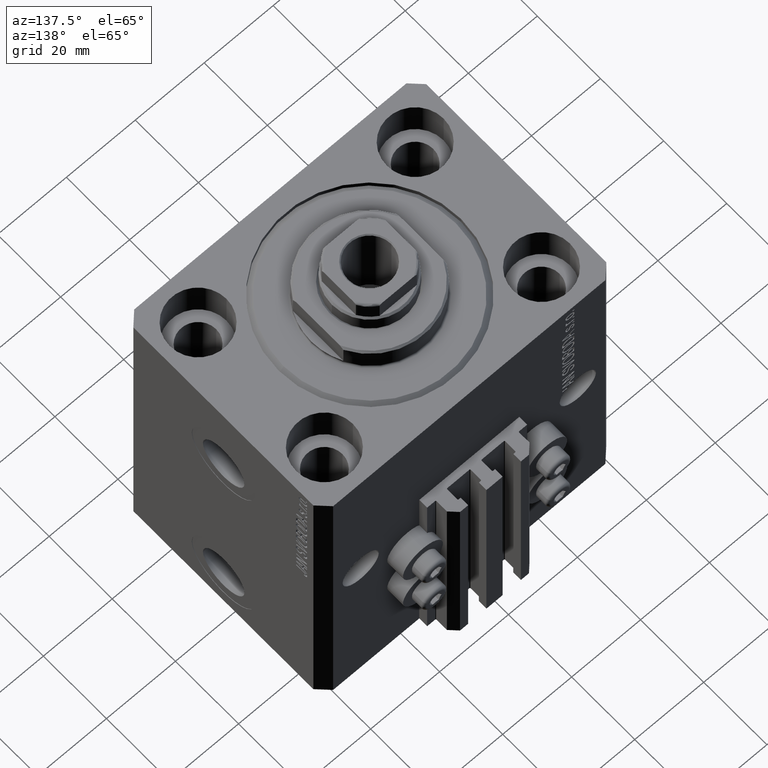
[diagram: clean part render]
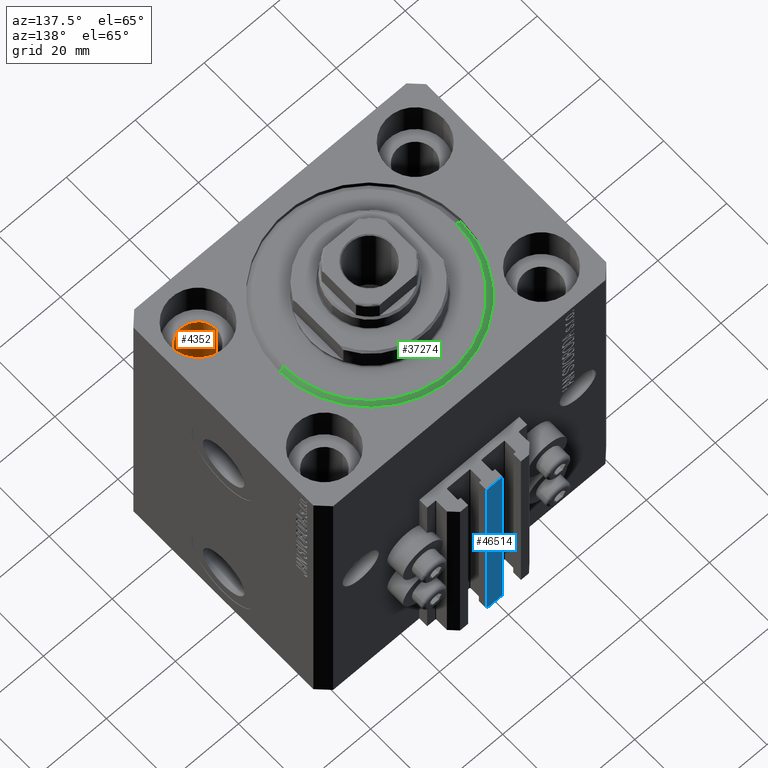
[diagram: same view with three faces highlighted in distinct colors, each labeled with its STEP entity id]
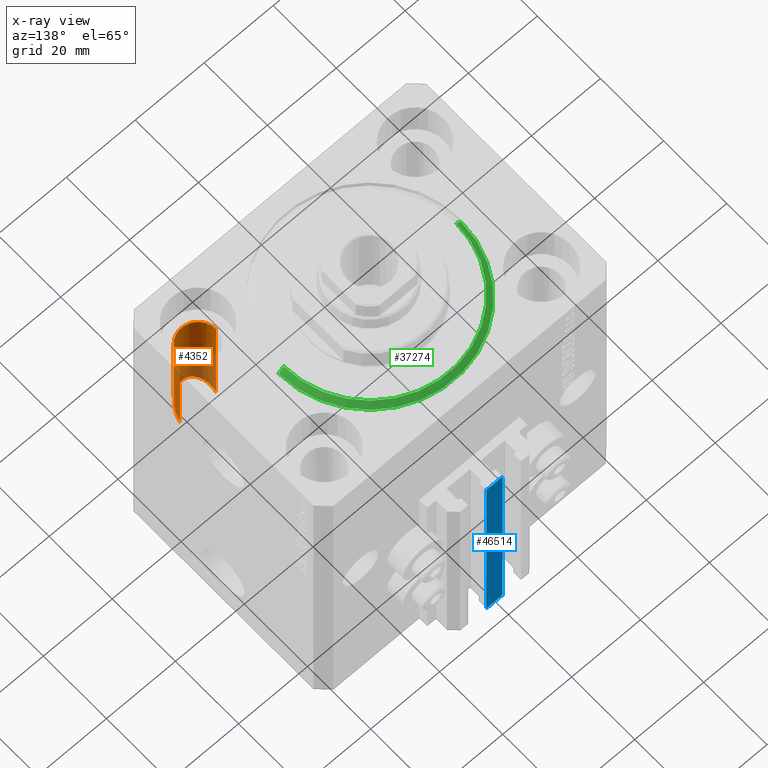
[diagram: x-ray of the same camera — body ghosted, the three highlighted faces saturated]
A machine part, auxiliary view with three faces highlighted in distinct colors.
The next image is the same camera in x-ray (body ghosted, the three faces saturated) — at least one of them is partly hidden behind the body in this view.
Their STEP definitions:

[orange] entity #4352 — the highlighted cylindrical surface (edge-blend (fillet) strip) has radius 5.25 mm, axis along (0, 0, 1).
#697 = VERTEX_POINT ( 'NONE', #34211 ) ;
#2749 = ORIENTED_EDGE ( 'NONE', *, *, #5112, .T. ) ;
#4341 = ORIENTED_EDGE ( 'NONE', *, *, #25120, .T. ) ;
#4352 = ADVANCED_FACE ( 'NONE', ( #44802 ), #14401, .F. ) ;
#4527 = CARTESIAN_POINT ( 'NONE',  ( 36.75000000000000000, -30.49999999999999645, -32.50000000000000711 ) ) ;
#5112 = EDGE_CURVE ( 'NONE', #13179, #29670, #9159, .T. ) ;
#5585 = EDGE_CURVE ( 'NONE', #697, #29670, #19811, .T. ) ;
#9159 = CIRCLE ( 'NONE', #47215, 5.249999999999997335 ) ;
#10966 = CARTESIAN_POINT ( 'NONE',  ( 36.75000000000000000, -20.00000000000000000, -11.00000000000000000 ) ) ;
#11570 = CARTESIAN_POINT ( 'NONE',  ( 26.25000000000001066, -20.00000000000000355, -43.00000000000000000 ) ) ;
#12799 = DIRECTION ( 'NONE',  ( 0.000000000000000000, 0.000000000000000000, 1.000000000000000000 ) ) ;
#13179 = VERTEX_POINT ( 'NONE', #17321 ) ;
#13188 = VECTOR ( 'NONE', #29678, 1000.000000000000000 ) ;
#14401 = CYLINDRICAL_SURFACE ( 'NONE', #38635, 5.249999999999997335 ) ;
#14590 = LINE ( 'NONE', #15071, #13188 ) ;
#15071 = CARTESIAN_POINT ( 'NONE',  ( 26.25000000000000355, -20.00000000000000000, -93.00000000000000000 ) ) ;
#15463 = CARTESIAN_POINT ( 'NONE',  ( 36.75000000000000711, -20.00000000000000355, -43.00000000000000000 ) ) ;
#17321 = CARTESIAN_POINT ( 'NONE',  ( 26.25000000000000355, -20.00000000000000000, -11.00000000000000000 ) ) ;
#19811 = LINE ( 'NONE', #39440, #39470 ) ;
#20593 = DIRECTION ( 'NONE',  ( 1.000000000000000000, 0.000000000000000000, 0.000000000000000000 ) ) ;
#20957 = DIRECTION ( 'NONE',  ( -0.000000000000000000, -0.000000000000000000, 1.000000000000000000 ) ) ;
#21267 = EDGE_LOOP ( 'NONE', ( #4341, #22322, #2749, #27769 ) ) ;
#21475 = DIRECTION ( 'NONE',  ( 1.000000000000000000, 0.000000000000000000, 0.000000000000000000 ) ) ;
#22322 = ORIENTED_EDGE ( 'NONE', *, *, #33324, .T. ) ;
#24970 = VERTEX_POINT ( 'NONE', #38627 ) ;
#25120 = EDGE_CURVE ( 'NONE', #697, #24970, #39880, .T. ) ;
#25137 = CARTESIAN_POINT ( 'NONE',  ( 31.50000000000000000, -20.00000000000000000, -93.00000000000000000 ) ) ;
#27769 = ORIENTED_EDGE ( 'NONE', *, *, #5585, .F. ) ;
#29490 = DIRECTION ( 'NONE',  ( -0.000000000000000000, -0.000000000000000000, 1.000000000000000000 ) ) ;
#29670 = VERTEX_POINT ( 'NONE', #10966 ) ;
#29678 = DIRECTION ( 'NONE',  ( -0.000000000000000000, -0.000000000000000000, 1.000000000000000000 ) ) ;
#33324 = EDGE_CURVE ( 'NONE', #24970, #13179, #14590, .T. ) ;
#34211 = CARTESIAN_POINT ( 'NONE',  ( 36.75000000000000711, -20.00000000000000355, -43.00000000000000000 ) ) ;
#37608 = CARTESIAN_POINT ( 'NONE',  ( 26.25000000000001776, -30.49999999999999645, -32.50000000000000711 ) ) ;
#38627 = CARTESIAN_POINT ( 'NONE',  ( 26.25000000000001066, -20.00000000000000355, -43.00000000000000000 ) ) ;
#38635 = AXIS2_PLACEMENT_3D ( 'NONE', #25137, #29490, #21475 ) ;
#39440 = CARTESIAN_POINT ( 'NONE',  ( 36.75000000000000000, -20.00000000000000000, -93.00000000000000000 ) ) ;
#39470 = VECTOR ( 'NONE', #20957, 1000.000000000000000 ) ;
#39880 =( BOUNDED_CURVE ( )  B_SPLINE_CURVE ( 3, ( #15463, #4527, #37608, #11570 ),
 .UNSPECIFIED., .F., .F. ) 
 B_SPLINE_CURVE_WITH_KNOTS ( ( 4, 4 ),
 ( 4.712388980384689674, 7.853981633974482790 ),
 .UNSPECIFIED. ) 
 CURVE ( )  GEOMETRIC_REPRESENTATION_ITEM ( )  RATIONAL_B_SPLINE_CURVE ( ( 1.000000000000000000, 0.3333333333333333703, 0.3333333333333333703, 1.000000000000000000 ) ) 
 REPRESENTATION_ITEM ( '' )  );
#44802 = FACE_OUTER_BOUND ( 'NONE', #21267, .T. ) ;
#46138 = CARTESIAN_POINT ( 'NONE',  ( 31.50000000000000000, -20.00000000000000000, -11.00000000000000000 ) ) ;
#47215 = AXIS2_PLACEMENT_3D ( 'NONE', #46138, #12799, #20593 ) ;

[blue] entity #46514 — the highlighted planar face has unit normal (0, -1, 0).
#368 = LINE ( 'NONE', #33949, #6888 ) ;
#981 = DIRECTION ( 'NONE',  ( 0.000000000000000000, -0.000000000000000000, -1.000000000000000000 ) ) ;
#1730 = ORIENTED_EDGE ( 'NONE', *, *, #29987, .T. ) ;
#1805 = AXIS2_PLACEMENT_3D ( 'NONE', #27509, #41857, #981 ) ;
#2627 = DIRECTION ( 'NONE',  ( 1.000000000000000000, 0.000000000000000000, 0.000000000000000000 ) ) ;
#3656 = EDGE_LOOP ( 'NONE', ( #1730, #18102, #12711, #33230 ) ) ;
#6888 = VECTOR ( 'NONE', #44894, 1000.000000000000000 ) ;
#7462 = EDGE_CURVE ( 'NONE', #35905, #8668, #368, .T. ) ;
#8668 = VERTEX_POINT ( 'NONE', #29296 ) ;
#12711 = ORIENTED_EDGE ( 'NONE', *, *, #42991, .F. ) ;
#13307 = DIRECTION ( 'NONE',  ( 1.000000000000000000, 0.000000000000000000, 0.000000000000000000 ) ) ;
#13345 = DIRECTION ( 'NONE',  ( 0.000000000000000000, 0.000000000000000000, 1.000000000000000000 ) ) ;
#16140 = VERTEX_POINT ( 'NONE', #39807 ) ;
#17730 = VECTOR ( 'NONE', #2627, 1000.000000000000000 ) ;
#17935 = LINE ( 'NONE', #36442, #29711 ) ;
#18102 = ORIENTED_EDGE ( 'NONE', *, *, #7462, .F. ) ;
#20312 = VECTOR ( 'NONE', #13307, 1000.000000000000000 ) ;
#24267 = CARTESIAN_POINT ( 'NONE',  ( -2.350000000000003642, 39.50000000000000711, -93.00000000000000000 ) ) ;
#24506 = LINE ( 'NONE', #24267, #20312 ) ;
#26991 = CARTESIAN_POINT ( 'NONE',  ( -2.350000000000003642, 39.50000000000000711, -33.00000000000000000 ) ) ;
#27018 = FACE_OUTER_BOUND ( 'NONE', #3656, .T. ) ;
#27509 = CARTESIAN_POINT ( 'NONE',  ( -2.350000000000003642, 39.50000000000000711, -93.00000000000000000 ) ) ;
#28756 = VERTEX_POINT ( 'NONE', #26991 ) ;
#29296 = CARTESIAN_POINT ( 'NONE',  ( 2.349999999999999645, 39.50000000000000711, -33.00000000000000000 ) ) ;
#29711 = VECTOR ( 'NONE', #13345, 1000.000000000000000 ) ;
#29987 = EDGE_CURVE ( 'NONE', #28756, #8668, #43267, .T. ) ;
#33230 = ORIENTED_EDGE ( 'NONE', *, *, #45193, .T. ) ;
#33949 = CARTESIAN_POINT ( 'NONE',  ( 2.349999999999999645, 39.50000000000000711, -93.00000000000000000 ) ) ;
#35905 = VERTEX_POINT ( 'NONE', #46778 ) ;
#36442 = CARTESIAN_POINT ( 'NONE',  ( -2.350000000000003642, 39.50000000000000711, -93.00000000000000000 ) ) ;
#39807 = CARTESIAN_POINT ( 'NONE',  ( -2.350000000000003642, 39.50000000000000711, -93.00000000000000000 ) ) ;
#41857 = DIRECTION ( 'NONE',  ( 0.000000000000000000, -1.000000000000000000, 0.000000000000000000 ) ) ;
#42347 = PLANE ( 'NONE',  #1805 ) ;
#42991 = EDGE_CURVE ( 'NONE', #16140, #35905, #24506, .T. ) ;
#43267 = LINE ( 'NONE', #47605, #17730 ) ;
#44894 = DIRECTION ( 'NONE',  ( 0.000000000000000000, 0.000000000000000000, 1.000000000000000000 ) ) ;
#45193 = EDGE_CURVE ( 'NONE', #16140, #28756, #17935, .T. ) ;
#46514 = ADVANCED_FACE ( 'NONE', ( #27018 ), #42347, .F. ) ;
#46778 = CARTESIAN_POINT ( 'NONE',  ( 2.349999999999999645, 39.50000000000000711, -93.00000000000000000 ) ) ;
#47605 = CARTESIAN_POINT ( 'NONE',  ( -2.350000000000003642, 39.50000000000000711, -33.00000000000000000 ) ) ;

[green] entity #37274 — the highlighted conical surface has half-angle 45 deg.
#2 = CIRCLE ( 'NONE', #3152, 26.50000000000000355 ) ;
#267 = DIRECTION ( 'NONE',  ( -0.7071067811865491270, 8.659560562354952580E-17, 0.7071067811865459074 ) ) ;
#717 = DIRECTION ( 'NONE',  ( 0.7071067811865491270, 0.000000000000000000, 0.7071067811865459074 ) ) ;
#3000 = CARTESIAN_POINT ( 'NONE',  ( -24.99999999999995026, 3.153465507804431248E-15, 0.000000000000000000 ) ) ;
#3152 = AXIS2_PLACEMENT_3D ( 'NONE', #40067, #14981, #44428 ) ;
#4267 = ORIENTED_EDGE ( 'NONE', *, *, #35443, .F. ) ;
#5918 = VECTOR ( 'NONE', #717, 1000.000000000000000 ) ;
#6785 = VERTEX_POINT ( 'NONE', #3000 ) ;
#8635 = VECTOR ( 'NONE', #267, 1000.000000000000000 ) ;
#8739 = LINE ( 'NONE', #27482, #5918 ) ;
#9577 = DIRECTION ( 'NONE',  ( 1.000000000000000000, 0.000000000000000000, 0.000000000000000000 ) ) ;
#10499 = CARTESIAN_POINT ( 'NONE',  ( 26.50000000000000355, 3.245314017740485765E-15, 1.500000000000046407 ) ) ;
#13224 = DIRECTION ( 'NONE',  ( -0.000000000000000000, -0.000000000000000000, -1.000000000000000000 ) ) ;
#14467 = DIRECTION ( 'NONE',  ( -0.000000000000000000, -0.000000000000000000, 1.000000000000000000 ) ) ;
#14981 = DIRECTION ( 'NONE',  ( -0.000000000000000000, -0.000000000000000000, 1.000000000000000000 ) ) ;
#16773 = AXIS2_PLACEMENT_3D ( 'NONE', #46557, #13224, #9577 ) ;
#18754 = VERTEX_POINT ( 'NONE', #33030 ) ;
#18758 = LINE ( 'NONE', #33596, #8635 ) ;
#21145 = EDGE_CURVE ( 'NONE', #6785, #18754, #37748, .T. ) ;
#22287 = EDGE_CURVE ( 'NONE', #18754, #42610, #8739, .T. ) ;
#25745 = CONICAL_SURFACE ( 'NONE', #31993, 26.50000000000000355, 0.7853981633974506105 ) ;
#27482 = CARTESIAN_POINT ( 'NONE',  ( 26.50000000000000355, 0.000000000000000000, 1.500000000000046407 ) ) ;
#28043 = VERTEX_POINT ( 'NONE', #42978 ) ;
#31993 = AXIS2_PLACEMENT_3D ( 'NONE', #47796, #14467, #44146 ) ;
#32961 = FACE_OUTER_BOUND ( 'NONE', #43590, .T. ) ;
#33030 = CARTESIAN_POINT ( 'NONE',  ( 24.99999999999995026, 0.000000000000000000, 0.000000000000000000 ) ) ;
#33596 = CARTESIAN_POINT ( 'NONE',  ( -26.50000000000000355, 3.245314017740486554E-15, 1.500000000000046407 ) ) ;
#35443 = EDGE_CURVE ( 'NONE', #42610, #28043, #2, .T. ) ;
#37274 = ADVANCED_FACE ( 'NONE', ( #32961 ), #25745, .T. ) ;
#37748 = CIRCLE ( 'NONE', #16773, 24.99999999999995026 ) ;
#38700 = ORIENTED_EDGE ( 'NONE', *, *, #21145, .F. ) ;
#40067 = CARTESIAN_POINT ( 'NONE',  ( 0.000000000000000000, 0.000000000000000000, 1.500000000000046407 ) ) ;
#40556 = ORIENTED_EDGE ( 'NONE', *, *, #42867, .T. ) ;
#40652 = ORIENTED_EDGE ( 'NONE', *, *, #22287, .F. ) ;
#42610 = VERTEX_POINT ( 'NONE', #10499 ) ;
#42867 = EDGE_CURVE ( 'NONE', #6785, #28043, #18758, .T. ) ;
#42978 = CARTESIAN_POINT ( 'NONE',  ( -26.50000000000000355, 0.000000000000000000, 1.500000000000046407 ) ) ;
#43590 = EDGE_LOOP ( 'NONE', ( #38700, #40556, #4267, #40652 ) ) ;
#44146 = DIRECTION ( 'NONE',  ( 1.000000000000000000, 0.000000000000000000, 0.000000000000000000 ) ) ;
#44428 = DIRECTION ( 'NONE',  ( 1.000000000000000000, 0.000000000000000000, 0.000000000000000000 ) ) ;
#46557 = CARTESIAN_POINT ( 'NONE',  ( 0.000000000000000000, 0.000000000000000000, 0.000000000000000000 ) ) ;
#47796 = CARTESIAN_POINT ( 'NONE',  ( 0.000000000000000000, 0.000000000000000000, 1.500000000000046407 ) ) ;